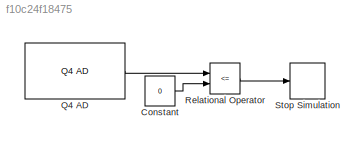
MODEL slx_f10c24f18475
KIND model
CONFIG AbsTol = auto
CONFIG EnableMultiTasking = off
CONFIG FixedStep = auto
CONFIG MaxStep = auto
CONFIG MinStep = auto
CONFIG RelTol = 1e-3
CONFIG SampleTimeConstraint = Unconstrained
CONFIG Solver = FixedStepAuto
CONFIG SolverName = FixedStepAuto
CONFIG StartTime = 0.0
CONFIG StopTime = inf
BLOCK [Constant] Constant
  Value = 0
BLOCK [Reference] Q4 AD  REF=xpcquanserlib/A//D/Q4 AD
  Ports = [0, 1]
  SourceBlock = xpcquanserlib/A//D/Q4 AD
  SourceProductBaseCode = XP
  SourceProductName = Simulink Real-Time
  SourceType = quanser_q4_ad
BLOCK [RelationalOperator] Relational Operator
  InputSameDT = off
  Operator = <=
  OutDataTypeStr = boolean
  Ports = [2, 1]
  RndMeth = Simplest
BLOCK [Stop] Stop Simulation
LINE Constant:1 -> Relational Operator:2
LINE Q4 AD:1 -> Relational Operator:1
LINE Relational Operator:1 -> Stop Simulation:1
